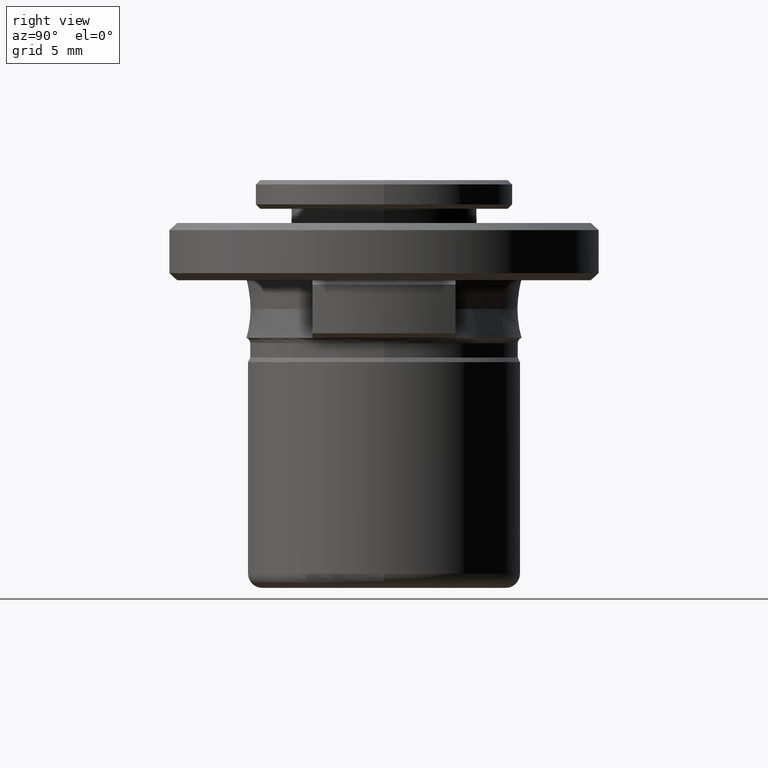
[diagram: clean part render]
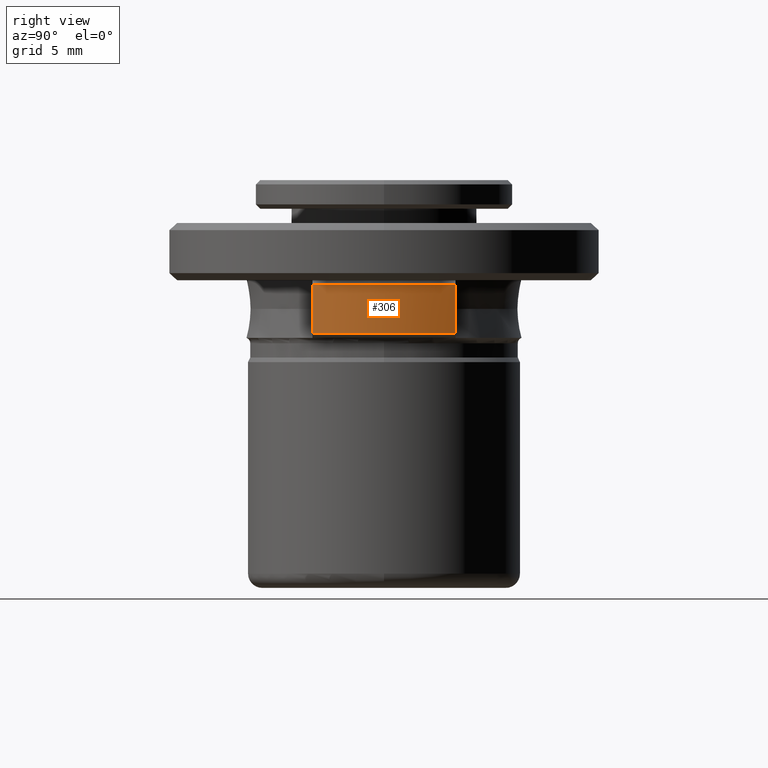
[diagram: same view with one face highlighted and labeled with its STEP entity id]
A machine part, right view. The second image highlights one B-rep face of the part: STEP entity #306.
In plain terms, the highlighted cylindrical surface (partial cylindrical patch) has radius 12.4 mm, axis along (0, 0, 1).
Its self-contained STEP definition (entity closure, byte-faithful):
#7 = CARTESIAN_POINT ( 'NONE',  ( 11.34724636200171400, 5.000000000000000000, 5.049999999998430400 ) ) ;
#16 = VERTEX_POINT ( 'NONE', #7 ) ;
#96 = EDGE_LOOP ( 'NONE', ( #712, #304, #1620, #1360, #1117 ) ) ;
#115 = EDGE_CURVE ( 'NONE', #383, #202, #405, .T. ) ;
#138 = EDGE_CURVE ( 'NONE', #383, #1505, #1811, .T. ) ;
#165 = CARTESIAN_POINT ( 'NONE',  ( 0.0000000000000000000, 0.0000000000000000000, 5.049999999999998900 ) ) ;
#182 = CARTESIAN_POINT ( 'NONE',  ( 11.34724636193648300, -5.000000000000000000, 5.049999999940308000 ) ) ;
#202 = VERTEX_POINT ( 'NONE', #182 ) ;
#242 = EDGE_CURVE ( 'NONE', #16, #1505, #1579, .T. ) ;
#304 = ORIENTED_EDGE ( 'NONE', *, *, #242, .T. ) ;
#306 = ADVANCED_FACE ( 'NONE', ( #1465 ), #1410, .T. ) ;
#307 = DIRECTION ( 'NONE',  ( 1.000000000000000000, 0.0000000000000000000, 6.994852725712930200E-017 ) ) ;
#344 = VERTEX_POINT ( 'NONE', #432 ) ;
#356 = AXIS2_PLACEMENT_3D ( 'NONE', #165, #1133, #307 ) ;
#371 = VECTOR ( 'NONE', #1065, 1000.000000000000000 ) ;
#380 = DIRECTION ( 'NONE',  ( 0.0000000000000000000, 0.0000000000000000000, 1.000000000000000000 ) ) ;
#383 = VERTEX_POINT ( 'NONE', #1826 ) ;
#405 = LINE ( 'NONE', #1156, #371 ) ;
#432 = CARTESIAN_POINT ( 'NONE',  ( 12.40000000000000200, 0.0000000000000000000, 5.049999999999998900 ) ) ;
#474 = VECTOR ( 'NONE', #1470, 1000.000000000000000 ) ;
#624 = DIRECTION ( 'NONE',  ( 0.0000000000000000000, -1.000000000000000000, 0.0000000000000000000 ) ) ;
#691 = CIRCLE ( 'NONE', #356, 12.40000000000000200 ) ;
#696 = CARTESIAN_POINT ( 'NONE',  ( 0.0000000000000000000, 0.0000000000000000000, 5.049999999999998900 ) ) ;
#712 = ORIENTED_EDGE ( 'NONE', *, *, #791, .F. ) ;
#750 = CARTESIAN_POINT ( 'NONE',  ( 0.0000000000000000000, 0.0000000000000000000, 5.049999999999999800 ) ) ;
#791 = EDGE_CURVE ( 'NONE', #16, #344, #691, .T. ) ;
#823 = DIRECTION ( 'NONE',  ( 1.000000000000000000, 0.0000000000000000000, 6.994852725712930200E-017 ) ) ;
#1002 = AXIS2_PLACEMENT_3D ( 'NONE', #750, #1745, #624 ) ;
#1023 = AXIS2_PLACEMENT_3D ( 'NONE', #696, #1682, #823 ) ;
#1065 = DIRECTION ( 'NONE',  ( 0.0000000000000000000, 0.0000000000000000000, -1.000000000000000000 ) ) ;
#1077 = CARTESIAN_POINT ( 'NONE',  ( 11.34724636200000000, 5.000000000000000000, 6.725040224999999900 ) ) ;
#1117 = ORIENTED_EDGE ( 'NONE', *, *, #1378, .F. ) ;
#1133 = DIRECTION ( 'NONE',  ( -0.0000000000000000000, -0.0000000000000000000, -1.000000000000000000 ) ) ;
#1156 = CARTESIAN_POINT ( 'NONE',  ( 11.34724636200000000, -5.000000000000000000, 6.725040224999999900 ) ) ;
#1196 = CARTESIAN_POINT ( 'NONE',  ( 0.0000000000000000000, 0.0000000000000000000, 8.449999999999999300 ) ) ;
#1353 = DIRECTION ( 'NONE',  ( 1.000000000000000000, 0.0000000000000000000, 1.398970545142586000E-016 ) ) ;
#1360 = ORIENTED_EDGE ( 'NONE', *, *, #115, .T. ) ;
#1378 = EDGE_CURVE ( 'NONE', #344, #202, #1813, .T. ) ;
#1410 = CYLINDRICAL_SURFACE ( 'NONE', #1002, 12.40000000000000200 ) ;
#1465 = FACE_OUTER_BOUND ( 'NONE', #96, .T. ) ;
#1470 = DIRECTION ( 'NONE',  ( -0.0000000000000000000, -0.0000000000000000000, 1.000000000000000000 ) ) ;
#1505 = VERTEX_POINT ( 'NONE', #1574 ) ;
#1574 = CARTESIAN_POINT ( 'NONE',  ( 11.34724636200171400, 5.000000000000000000, 8.450000000001548300 ) ) ;
#1579 = LINE ( 'NONE', #1077, #474 ) ;
#1620 = ORIENTED_EDGE ( 'NONE', *, *, #138, .F. ) ;
#1682 = DIRECTION ( 'NONE',  ( -0.0000000000000000000, -0.0000000000000000000, -1.000000000000000000 ) ) ;
#1745 = DIRECTION ( 'NONE',  ( 0.0000000000000000000, 3.497426362856465100E-017, 1.000000000000000000 ) ) ;
#1802 = AXIS2_PLACEMENT_3D ( 'NONE', #1196, #380, #1353 ) ;
#1811 = CIRCLE ( 'NONE', #1802, 12.40000000000000200 ) ;
#1813 = CIRCLE ( 'NONE', #1023, 12.40000000000000200 ) ;
#1826 = CARTESIAN_POINT ( 'NONE',  ( 11.34724636202748200, -5.000000000000000000, 8.449999999976419900 ) ) ;